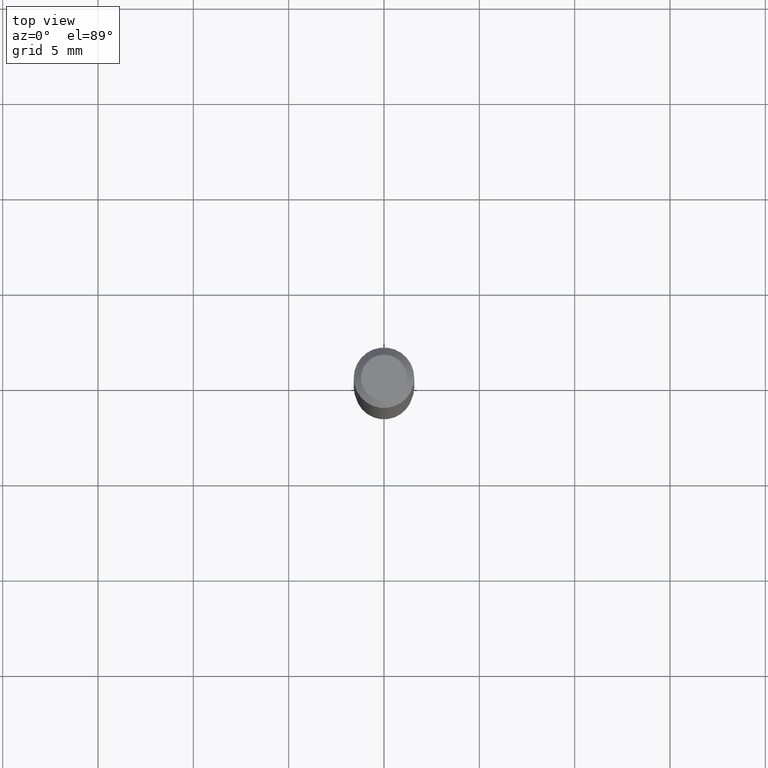
[diagram: clean part render]
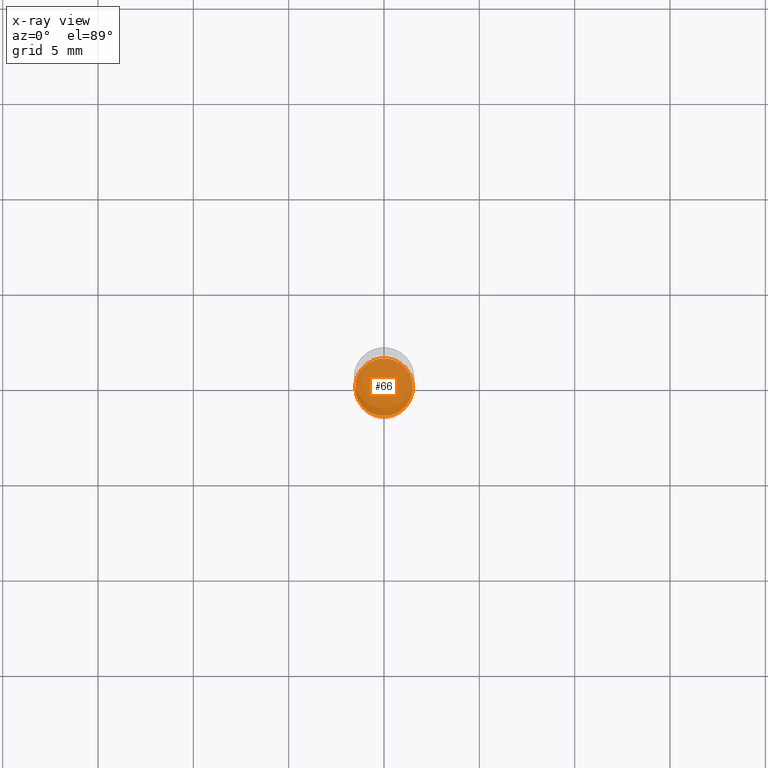
[diagram: x-ray — body ghosted, one internal face saturated and labeled with its STEP entity id]
A machine part, top view, then the same camera in x-ray: the body is ghosted and one INTERNAL B-rep face — a face not visible from any outside direction — is saturated and labeled: STEP entity #66.
In plain terms, the highlighted planar face has unit normal (-0, 0, 1).
Its self-contained STEP definition (entity closure, byte-faithful):
#35 = AXIS2_PLACEMENT_3D ( 'NONE', #195, #205, #311 ) ;
#58 = CARTESIAN_POINT ( 'NONE',  ( 2.787834439051055989E-29, -3.980288726281186698E-15, -1.140000000000000124 ) ) ;
#66 = ADVANCED_FACE ( 'NONE', ( #494 ), #265, .F. ) ;
#84 = EDGE_CURVE ( 'NONE', #321, #322, #339, .T. ) ;
#119 = ORIENTED_EDGE ( 'NONE', *, *, #135, .F. ) ;
#128 = ORIENTED_EDGE ( 'NONE', *, *, #84, .F. ) ;
#135 = EDGE_CURVE ( 'NONE', #322, #321, #307, .T. ) ;
#165 = CARTESIAN_POINT ( 'NONE',  ( 0.05950000000000009448, -4.395775005603519536E-15, -1.140000000000000124 ) ) ;
#195 = CARTESIAN_POINT ( 'NONE',  ( 2.787834439051055989E-29, -3.980288726281186698E-15, -1.140000000000000124 ) ) ;
#205 = DIRECTION ( 'NONE',  ( -2.445468806185136597E-29, 3.491481338843145583E-15, 1.000000000000000000 ) ) ;
#232 = DIRECTION ( 'NONE',  ( -2.438088387897960049E-29, 3.491481338843145188E-15, 1.000000000000000000 ) ) ;
#265 = PLANE ( 'NONE',  #413 ) ;
#307 = CIRCLE ( 'NONE', #35, 0.05950000000000009448 ) ;
#311 = DIRECTION ( 'NONE',  ( 1.000000000000000000, -6.982962677686265133E-15, 0.000000000000000000 ) ) ;
#321 = VERTEX_POINT ( 'NONE', #165 ) ;
#322 = VERTEX_POINT ( 'NONE', #401 ) ;
#339 = CIRCLE ( 'NONE', #389, 0.05950000000000009448 ) ;
#381 = DIRECTION ( 'NONE',  ( 1.000000000000000000, -6.982962677686265922E-15, 4.876176775795935793E-29 ) ) ;
#385 = DIRECTION ( 'NONE',  ( -2.445468806185136597E-29, 3.491481338843145583E-15, 1.000000000000000000 ) ) ;
#389 = AXIS2_PLACEMENT_3D ( 'NONE', #500, #385, #491 ) ;
#401 = CARTESIAN_POINT ( 'NONE',  ( -0.05950000000000009448, -3.554866571329815116E-15, -1.140000000000000124 ) ) ;
#413 = AXIS2_PLACEMENT_3D ( 'NONE', #58, #232, #381 ) ;
#491 = DIRECTION ( 'NONE',  ( 1.000000000000000000, -6.982962677686265133E-15, 0.000000000000000000 ) ) ;
#494 = FACE_OUTER_BOUND ( 'NONE', #515, .T. ) ;
#500 = CARTESIAN_POINT ( 'NONE',  ( 2.787834439051055989E-29, -3.980288726281186698E-15, -1.140000000000000124 ) ) ;
#515 = EDGE_LOOP ( 'NONE', ( #128, #119 ) ) ;